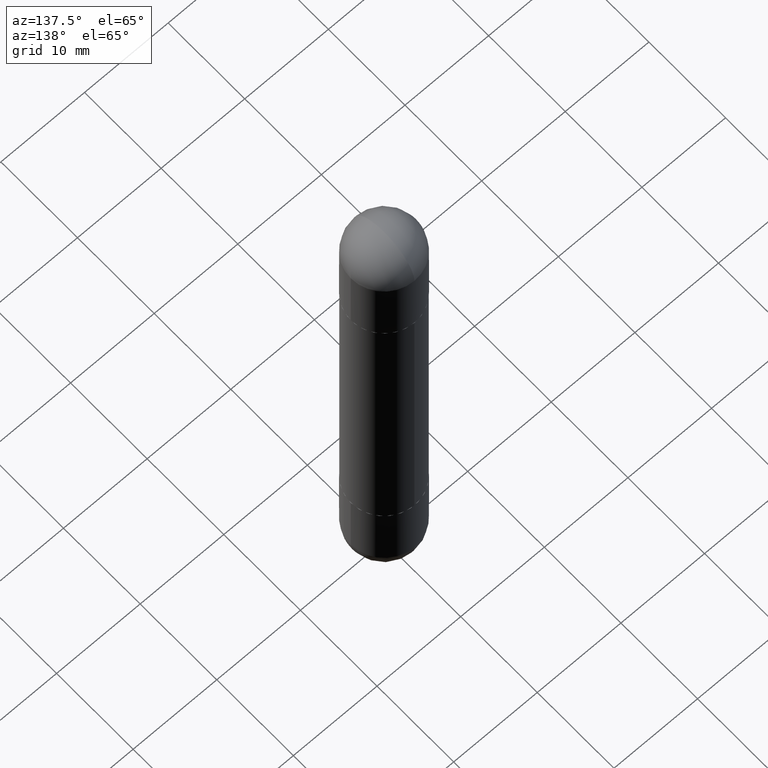
[diagram: clean part render]
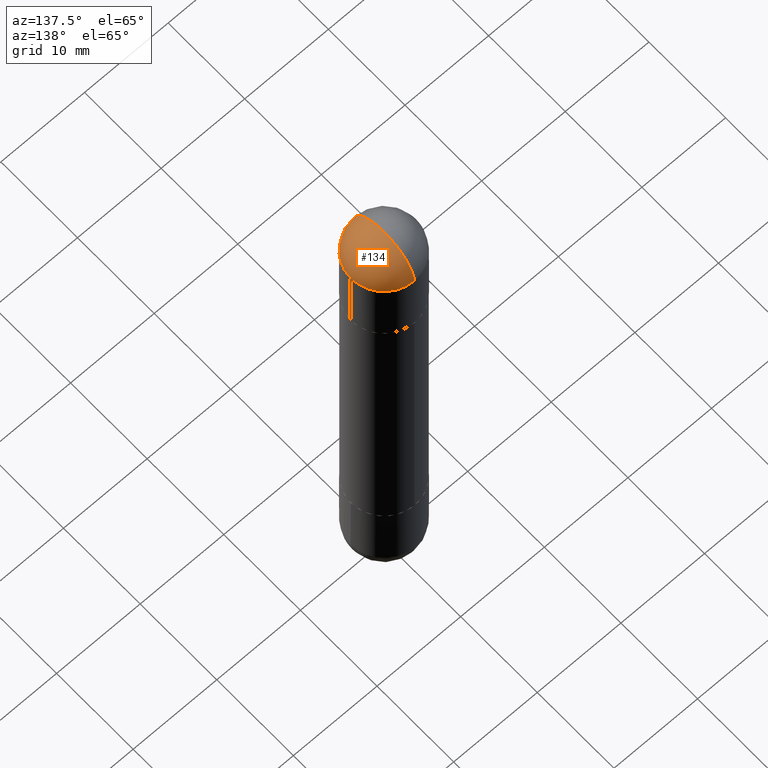
[diagram: same view with one face highlighted and labeled with its STEP entity id]
A machine part, auxiliary view. The second image highlights one B-rep face of the part: STEP entity #134.
In plain terms, the highlighted spherical surface has radius 3.9688 mm.
Its self-contained STEP definition (entity closure, byte-faithful):
#12 = CARTESIAN_POINT ( 'NONE',  ( 5.789233224183170584E-29, -9.193318162129576161E-15, -3.073328992872296367E-16 ) ) ;
#21 = CIRCLE ( 'NONE', #629, 0.1562500000000000000 ) ;
#25 = ORIENTED_EDGE ( 'NONE', *, *, #593, .T. ) ;
#77 = AXIS2_PLACEMENT_3D ( 'NONE', #113, #423, #290 ) ;
#113 = CARTESIAN_POINT ( 'NONE',  ( 5.400447736582527652E-29, -8.657341756053672891E-15, -0.1562500000000005551 ) ) ;
#115 = EDGE_CURVE ( 'NONE', #274, #388, #150, .T. ) ;
#122 = ORIENTED_EDGE ( 'NONE', *, *, #115, .T. ) ;
#134 = ADVANCED_FACE ( 'NONE', ( #213 ), #655, .T. ) ;
#150 = CIRCLE ( 'NONE', #685, 0.1562500000000000000 ) ;
#174 = CARTESIAN_POINT ( 'NONE',  ( -1.071952812151746981E-15, -0.1562500000000085487, -0.1562500000000011102 ) ) ;
#175 = EDGE_CURVE ( 'NONE', #541, #274, #697, .T. ) ;
#177 = CIRCLE ( 'NONE', #493, 0.1562500000000002498 ) ;
#213 = FACE_OUTER_BOUND ( 'NONE', #384, .T. ) ;
#268 = CARTESIAN_POINT ( 'NONE',  ( 5.731567514496413899E-29, -8.183159387913622595E-15, -0.1562500000000005551 ) ) ;
#269 = EDGE_CURVE ( 'NONE', #541, #573, #177, .T. ) ;
#274 = VERTEX_POINT ( 'NONE', #174 ) ;
#290 = DIRECTION ( 'NONE',  ( 6.860497997771530774E-15, 1.000000000000000000, 0.000000000000000000 ) ) ;
#293 = DIRECTION ( 'NONE',  ( -1.000000000000000000, 6.982962677686265922E-15, 4.883557194083112340E-29 ) ) ;
#344 = CARTESIAN_POINT ( 'NONE',  ( 5.400447736582527652E-29, -8.657341756053672891E-15, -0.1562500000000005551 ) ) ;
#379 = CARTESIAN_POINT ( 'NONE',  ( 0.1562500000000000000, -8.674148951188436448E-15, -0.1562500000000005551 ) ) ;
#384 = EDGE_LOOP ( 'NONE', ( #564, #640, #122, #25 ) ) ;
#388 = VERTEX_POINT ( 'NONE', #379 ) ;
#423 = DIRECTION ( 'NONE',  ( 1.000000000000000000, -6.860497997771530774E-15, -4.840798879624142912E-29 ) ) ;
#460 = CARTESIAN_POINT ( 'NONE',  ( 1.091087918388535577E-15, 0.1562499999999916733, -0.1562500000000000000 ) ) ;
#464 = AXIS2_PLACEMENT_3D ( 'NONE', #344, #781, #532 ) ;
#479 = CARTESIAN_POINT ( 'NONE',  ( 5.400447736582527652E-29, -8.657341756053672891E-15, -0.1562500000000005551 ) ) ;
#493 = AXIS2_PLACEMENT_3D ( 'NONE', #479, #293, #613 ) ;
#520 = DIRECTION ( 'NONE',  ( 1.000000000000000000, -6.982962677686262766E-15, 0.000000000000000000 ) ) ;
#528 = DIRECTION ( 'NONE',  ( 2.445468806185136597E-29, -3.491481338843145583E-15, 1.000000000000000000 ) ) ;
#532 = DIRECTION ( 'NONE',  ( 6.982962677686265922E-15, 1.000000000000000000, 3.496765431890251398E-15 ) ) ;
#541 = VERTEX_POINT ( 'NONE', #12 ) ;
#564 = ORIENTED_EDGE ( 'NONE', *, *, #269, .F. ) ;
#573 = VERTEX_POINT ( 'NONE', #460 ) ;
#593 = EDGE_CURVE ( 'NONE', #388, #573, #21, .T. ) ;
#613 = DIRECTION ( 'NONE',  ( -6.982962677686265922E-15, -1.000000000000000000, 0.000000000000000000 ) ) ;
#629 = AXIS2_PLACEMENT_3D ( 'NONE', #268, #780, #520 ) ;
#640 = ORIENTED_EDGE ( 'NONE', *, *, #175, .T. ) ;
#655 = SPHERICAL_SURFACE ( 'NONE', #464, 0.1562500000000002498 ) ;
#685 = AXIS2_PLACEMENT_3D ( 'NONE', #722, #528, #773 ) ;
#697 = CIRCLE ( 'NONE', #77, 0.1562500000000002498 ) ;
#722 = CARTESIAN_POINT ( 'NONE',  ( 5.731567514496413899E-29, -8.183159387913622595E-15, -0.1562500000000005551 ) ) ;
#773 = DIRECTION ( 'NONE',  ( 1.000000000000000000, -6.982962677686262766E-15, 0.000000000000000000 ) ) ;
#780 = DIRECTION ( 'NONE',  ( 2.445468806185136597E-29, -3.491481338843145583E-15, 1.000000000000000000 ) ) ;
#781 = DIRECTION ( 'NONE',  ( 1.000000000000000000, -6.982962677686265922E-15, -4.883557194083112340E-29 ) ) ;